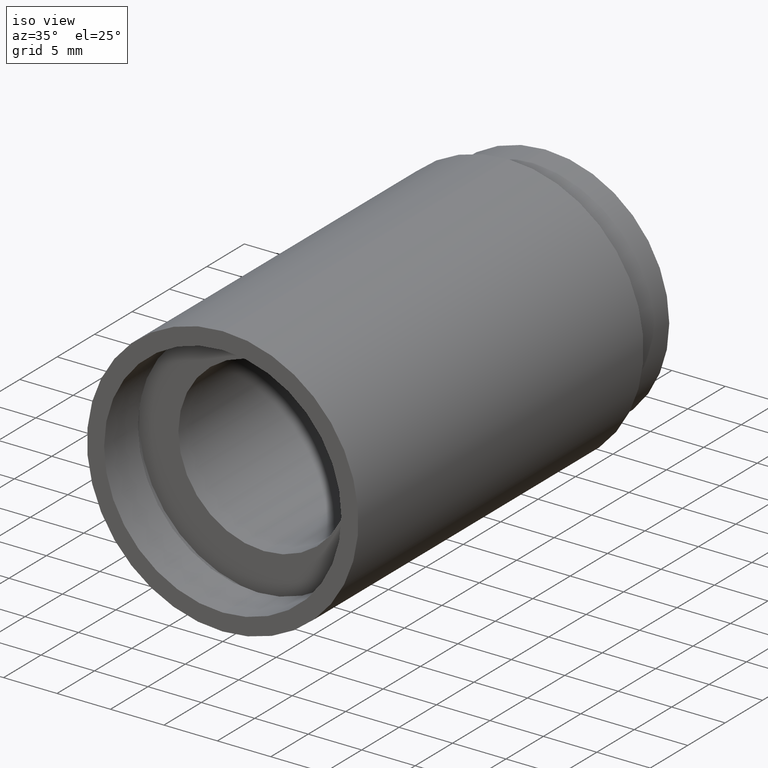
[diagram: clean part render]
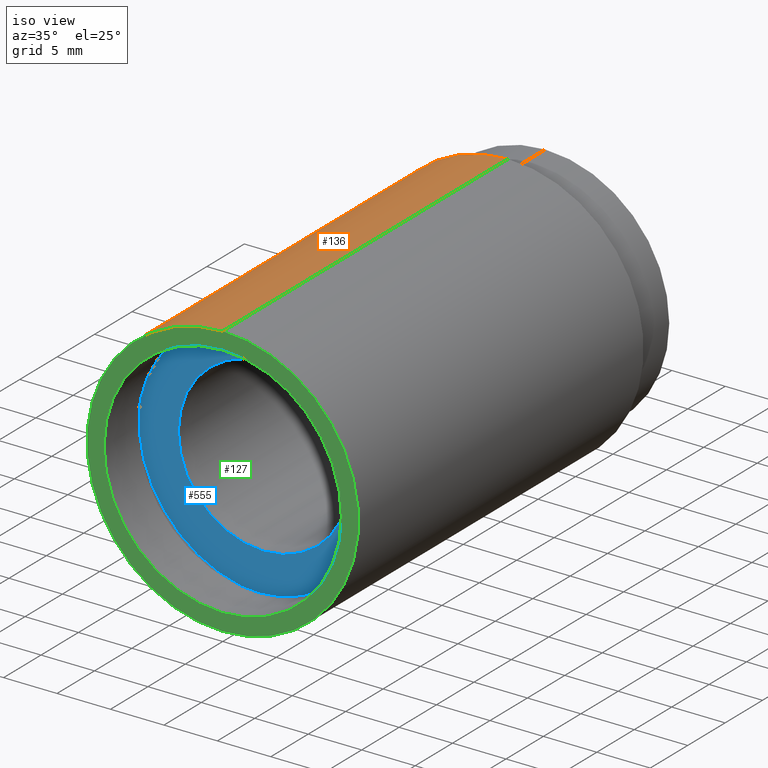
[diagram: same view with three faces highlighted in distinct colors, each labeled with its STEP entity id]
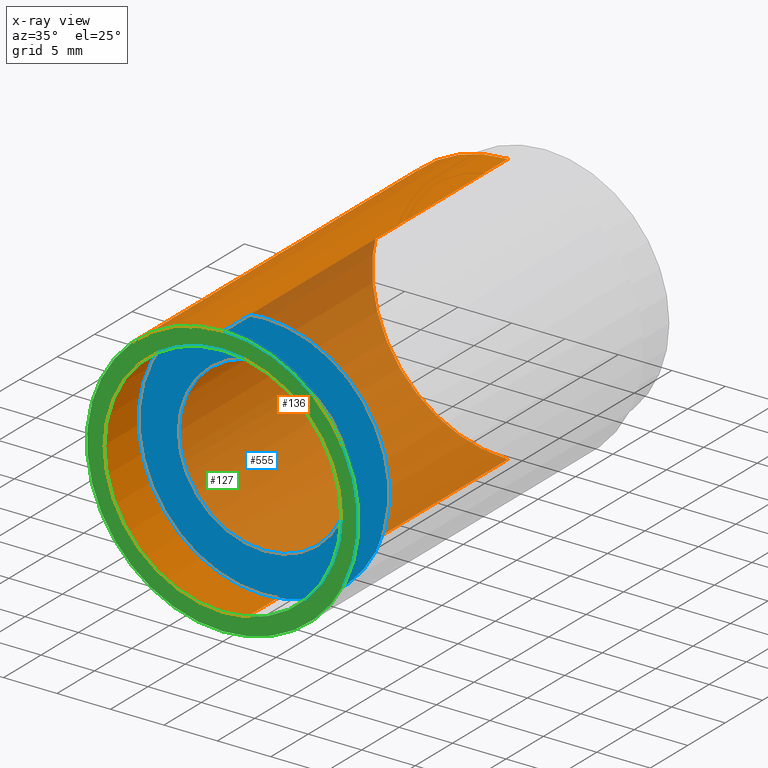
[diagram: x-ray of the same camera — body ghosted, the three highlighted faces saturated]
A machine part, iso view with three faces highlighted in distinct colors.
The next image is the same camera in x-ray (body ghosted, the three faces saturated) — at least one of them is partly hidden behind the body in this view.
Their STEP definitions:

[orange] entity #136 — the highlighted cylindrical surface (partial cylindrical patch) has radius 12.7 mm, axis along (-0, 1, -0).
#49 = CARTESIAN_POINT ( 'NONE',  ( 0.0000000000000000000, 161.3761669434274500, 12.70000000000002800 ) ) ;
#73 = AXIS2_PLACEMENT_3D ( 'NONE', #581, #222, #162 ) ;
#77 = VERTEX_POINT ( 'NONE', #94 ) ;
#83 = VERTEX_POINT ( 'NONE', #524 ) ;
#90 = ORIENTED_EDGE ( 'NONE', *, *, #505, .F. ) ;
#94 = CARTESIAN_POINT ( 'NONE',  ( 0.0000000000000000000, -2.775557561562891400E-014, 12.70000000000001900 ) ) ;
#118 = VERTEX_POINT ( 'NONE', #296 ) ;
#130 = VERTEX_POINT ( 'NONE', #610 ) ;
#136 = ADVANCED_FACE ( 'NONE', ( #419 ), #506, .T. ) ;
#151 = DIRECTION ( 'NONE',  ( 0.0000000000000000000, 0.0000000000000000000, 1.000000000000000000 ) ) ;
#152 = ORIENTED_EDGE ( 'NONE', *, *, #201, .T. ) ;
#153 = AXIS2_PLACEMENT_3D ( 'NONE', #578, #250, #151 ) ;
#156 = VECTOR ( 'NONE', #441, 1000.000000000000000 ) ;
#157 = ORIENTED_EDGE ( 'NONE', *, *, #309, .F. ) ;
#162 = DIRECTION ( 'NONE',  ( 0.0000000000000000000, 0.0000000000000000000, 1.000000000000000000 ) ) ;
#186 = LINE ( 'NONE', #591, #458 ) ;
#197 = DIRECTION ( 'NONE',  ( -0.0000000000000000000, 1.000000000000000000, -0.0000000000000000000 ) ) ;
#201 = EDGE_CURVE ( 'NONE', #77, #130, #452, .T. ) ;
#222 = DIRECTION ( 'NONE',  ( -0.0000000000000000000, 1.000000000000000000, -0.0000000000000000000 ) ) ;
#250 = DIRECTION ( 'NONE',  ( -0.0000000000000000000, 1.000000000000000000, -0.0000000000000000000 ) ) ;
#272 = CIRCLE ( 'NONE', #73, 12.70000000000003700 ) ;
#296 = CARTESIAN_POINT ( 'NONE',  ( 1.555301434917141200E-015, -2.775557561562891400E-014, -12.70000000000001900 ) ) ;
#309 = EDGE_CURVE ( 'NONE', #83, #130, #272, .T. ) ;
#329 = DIRECTION ( 'NONE',  ( -0.0000000000000000000, 1.000000000000000000, -0.0000000000000000000 ) ) ;
#419 = FACE_OUTER_BOUND ( 'NONE', #597, .T. ) ;
#432 = DIRECTION ( 'NONE',  ( 0.0000000000000000000, 0.0000000000000000000, 1.000000000000000000 ) ) ;
#441 = DIRECTION ( 'NONE',  ( -0.0000000000000000000, 1.000000000000000000, -0.0000000000000000000 ) ) ;
#452 = LINE ( 'NONE', #49, #156 ) ;
#458 = VECTOR ( 'NONE', #329, 1000.000000000000000 ) ;
#505 = EDGE_CURVE ( 'NONE', #118, #83, #186, .T. ) ;
#506 = CYLINDRICAL_SURFACE ( 'NONE', #153, 12.70000000000002800 ) ;
#523 = CARTESIAN_POINT ( 'NONE',  ( 0.0000000000000000000, -2.775557561562891400E-014, 0.0000000000000000000 ) ) ;
#524 = CARTESIAN_POINT ( 'NONE',  ( 1.555301434917143000E-015, 38.09999999999999400, -12.70000000000003700 ) ) ;
#546 = ORIENTED_EDGE ( 'NONE', *, *, #593, .T. ) ;
#571 = CIRCLE ( 'NONE', #612, 12.70000000000001900 ) ;
#578 = CARTESIAN_POINT ( 'NONE',  ( 0.0000000000000000000, 161.3761669434274500, 0.0000000000000000000 ) ) ;
#581 = CARTESIAN_POINT ( 'NONE',  ( 0.0000000000000000000, 38.09999999999999400, 0.0000000000000000000 ) ) ;
#591 = CARTESIAN_POINT ( 'NONE',  ( 1.555301434917142000E-015, 161.3761669434274500, -12.70000000000002800 ) ) ;
#593 = EDGE_CURVE ( 'NONE', #118, #77, #571, .T. ) ;
#597 = EDGE_LOOP ( 'NONE', ( #90, #546, #152, #157 ) ) ;
#610 = CARTESIAN_POINT ( 'NONE',  ( 0.0000000000000000000, 38.09999999999999400, 12.70000000000003700 ) ) ;
#612 = AXIS2_PLACEMENT_3D ( 'NONE', #523, #197, #432 ) ;

[blue] entity #555 — the highlighted planar face has unit normal (-0, 1, 0).
#12 = ORIENTED_EDGE ( 'NONE', *, *, #388, .F. ) ;
#17 = CARTESIAN_POINT ( 'NONE',  ( 1.432836755002405500E-015, 5.499999999999976900, -11.70000000000001700 ) ) ;
#22 = EDGE_LOOP ( 'NONE', ( #486, #140 ) ) ;
#25 = DIRECTION ( 'NONE',  ( -0.0000000000000000000, 1.000000000000000000, 0.0000000000000000000 ) ) ;
#43 = VERTEX_POINT ( 'NONE', #601 ) ;
#51 = VERTEX_POINT ( 'NONE', #606 ) ;
#54 = CIRCLE ( 'NONE', #429, 11.70000000000001700 ) ;
#122 = CARTESIAN_POINT ( 'NONE',  ( 0.0000000000000000000, 5.499999999999976900, 0.0000000000000000000 ) ) ;
#131 = CARTESIAN_POINT ( 'NONE',  ( 11.70000000000001700, 5.499999999999984000, 0.0000000000000000000 ) ) ;
#140 = ORIENTED_EDGE ( 'NONE', *, *, #418, .T. ) ;
#170 = CIRCLE ( 'NONE', #529, 8.000000000000019500 ) ;
#174 = AXIS2_PLACEMENT_3D ( 'NONE', #122, #548, #363 ) ;
#189 = DIRECTION ( 'NONE',  ( 0.0000000000000000000, 0.0000000000000000000, 1.000000000000000000 ) ) ;
#193 = CIRCLE ( 'NONE', #174, 11.70000000000001700 ) ;
#233 = DIRECTION ( 'NONE',  ( -0.0000000000000000000, 1.000000000000000000, -0.0000000000000000000 ) ) ;
#277 = DIRECTION ( 'NONE',  ( 0.0000000000000000000, 0.0000000000000000000, 1.000000000000000000 ) ) ;
#283 = EDGE_LOOP ( 'NONE', ( #12, #428 ) ) ;
#299 = VERTEX_POINT ( 'NONE', #360 ) ;
#327 = DIRECTION ( 'NONE',  ( 0.0000000000000000000, 0.0000000000000000000, 1.000000000000000000 ) ) ;
#328 = DIRECTION ( 'NONE',  ( -0.0000000000000000000, 1.000000000000000000, -0.0000000000000000000 ) ) ;
#342 = FACE_OUTER_BOUND ( 'NONE', #283, .T. ) ;
#349 = FACE_BOUND ( 'NONE', #22, .T. ) ;
#360 = CARTESIAN_POINT ( 'NONE',  ( 9.797174393178849300E-016, 5.499999999999976900, -8.000000000000019500 ) ) ;
#363 = DIRECTION ( 'NONE',  ( 0.0000000000000000000, 0.0000000000000000000, 1.000000000000000000 ) ) ;
#366 = CARTESIAN_POINT ( 'NONE',  ( 0.0000000000000000000, 5.499999999999976900, 0.0000000000000000000 ) ) ;
#388 = EDGE_CURVE ( 'NONE', #43, #481, #193, .T. ) ;
#418 = EDGE_CURVE ( 'NONE', #299, #51, #170, .T. ) ;
#421 = CARTESIAN_POINT ( 'NONE',  ( 0.0000000000000000000, 5.499999999999976900, 0.0000000000000000000 ) ) ;
#428 = ORIENTED_EDGE ( 'NONE', *, *, #525, .F. ) ;
#429 = AXIS2_PLACEMENT_3D ( 'NONE', #459, #328, #511 ) ;
#453 = AXIS2_PLACEMENT_3D ( 'NONE', #131, #25, #327 ) ;
#459 = CARTESIAN_POINT ( 'NONE',  ( 0.0000000000000000000, 5.499999999999976900, 0.0000000000000000000 ) ) ;
#481 = VERTEX_POINT ( 'NONE', #17 ) ;
#486 = ORIENTED_EDGE ( 'NONE', *, *, #588, .T. ) ;
#511 = DIRECTION ( 'NONE',  ( 0.0000000000000000000, 0.0000000000000000000, 1.000000000000000000 ) ) ;
#525 = EDGE_CURVE ( 'NONE', #481, #43, #54, .T. ) ;
#529 = AXIS2_PLACEMENT_3D ( 'NONE', #366, #550, #277 ) ;
#542 = CIRCLE ( 'NONE', #602, 8.000000000000019500 ) ;
#548 = DIRECTION ( 'NONE',  ( -0.0000000000000000000, 1.000000000000000000, -0.0000000000000000000 ) ) ;
#550 = DIRECTION ( 'NONE',  ( -0.0000000000000000000, 1.000000000000000000, -0.0000000000000000000 ) ) ;
#555 = ADVANCED_FACE ( 'NONE', ( #342, #349 ), #596, .F. ) ;
#588 = EDGE_CURVE ( 'NONE', #51, #299, #542, .T. ) ;
#596 = PLANE ( 'NONE',  #453 ) ;
#601 = CARTESIAN_POINT ( 'NONE',  ( 0.0000000000000000000, 5.499999999999976900, 11.70000000000001700 ) ) ;
#602 = AXIS2_PLACEMENT_3D ( 'NONE', #421, #233, #189 ) ;
#606 = CARTESIAN_POINT ( 'NONE',  ( 0.0000000000000000000, 5.499999999999976900, 8.000000000000019500 ) ) ;

[green] entity #127 — the highlighted planar face has unit normal (-0, 1, 0).
#6 = DIRECTION ( 'NONE',  ( 0.0000000000000000000, 0.0000000000000000000, 1.000000000000000000 ) ) ;
#11 = ORIENTED_EDGE ( 'NONE', *, *, #369, .F. ) ;
#29 = FACE_OUTER_BOUND ( 'NONE', #368, .T. ) ;
#42 = FACE_BOUND ( 'NONE', #106, .T. ) ;
#46 = CARTESIAN_POINT ( 'NONE',  ( 11.10000000000002300, -1.590039098016662300E-014, 0.0000000000000000000 ) ) ;
#61 = EDGE_CURVE ( 'NONE', #84, #149, #491, .T. ) ;
#67 = DIRECTION ( 'NONE',  ( 0.0000000000000000000, 0.0000000000000000000, 1.000000000000000000 ) ) ;
#77 = VERTEX_POINT ( 'NONE', #94 ) ;
#84 = VERTEX_POINT ( 'NONE', #301 ) ;
#94 = CARTESIAN_POINT ( 'NONE',  ( 0.0000000000000000000, -2.775557561562891400E-014, 12.70000000000001900 ) ) ;
#106 = EDGE_LOOP ( 'NONE', ( #346, #510 ) ) ;
#118 = VERTEX_POINT ( 'NONE', #296 ) ;
#127 = ADVANCED_FACE ( 'NONE', ( #29, #42 ), #143, .F. ) ;
#143 = PLANE ( 'NONE',  #177 ) ;
#147 = CARTESIAN_POINT ( 'NONE',  ( 0.0000000000000000000, -2.775557561562891400E-014, 0.0000000000000000000 ) ) ;
#149 = VERTEX_POINT ( 'NONE', #575 ) ;
#171 = AXIS2_PLACEMENT_3D ( 'NONE', #176, #179, #67 ) ;
#176 = CARTESIAN_POINT ( 'NONE',  ( 0.0000000000000000000, -2.775557561562891400E-014, 0.0000000000000000000 ) ) ;
#177 = AXIS2_PLACEMENT_3D ( 'NONE', #46, #399, #573 ) ;
#179 = DIRECTION ( 'NONE',  ( -0.0000000000000000000, 1.000000000000000000, -0.0000000000000000000 ) ) ;
#191 = DIRECTION ( 'NONE',  ( -0.0000000000000000000, 1.000000000000000000, -0.0000000000000000000 ) ) ;
#197 = DIRECTION ( 'NONE',  ( -0.0000000000000000000, 1.000000000000000000, -0.0000000000000000000 ) ) ;
#219 = AXIS2_PLACEMENT_3D ( 'NONE', #585, #316, #6 ) ;
#245 = ORIENTED_EDGE ( 'NONE', *, *, #593, .F. ) ;
#260 = AXIS2_PLACEMENT_3D ( 'NONE', #147, #191, #293 ) ;
#293 = DIRECTION ( 'NONE',  ( 0.0000000000000000000, 0.0000000000000000000, 1.000000000000000000 ) ) ;
#296 = CARTESIAN_POINT ( 'NONE',  ( 1.555301434917141200E-015, -2.775557561562891400E-014, -12.70000000000001900 ) ) ;
#301 = CARTESIAN_POINT ( 'NONE',  ( 0.0000000000000000000, -2.775557561562891400E-014, 11.10000000000002300 ) ) ;
#316 = DIRECTION ( 'NONE',  ( -0.0000000000000000000, 1.000000000000000000, -0.0000000000000000000 ) ) ;
#346 = ORIENTED_EDGE ( 'NONE', *, *, #61, .T. ) ;
#368 = EDGE_LOOP ( 'NONE', ( #11, #245 ) ) ;
#369 = EDGE_CURVE ( 'NONE', #77, #118, #478, .T. ) ;
#370 = CIRCLE ( 'NONE', #171, 11.10000000000002300 ) ;
#399 = DIRECTION ( 'NONE',  ( -0.0000000000000000000, 1.000000000000000000, 0.0000000000000000000 ) ) ;
#414 = EDGE_CURVE ( 'NONE', #149, #84, #370, .T. ) ;
#432 = DIRECTION ( 'NONE',  ( 0.0000000000000000000, 0.0000000000000000000, 1.000000000000000000 ) ) ;
#478 = CIRCLE ( 'NONE', #219, 12.70000000000001900 ) ;
#491 = CIRCLE ( 'NONE', #260, 11.10000000000002300 ) ;
#510 = ORIENTED_EDGE ( 'NONE', *, *, #414, .T. ) ;
#523 = CARTESIAN_POINT ( 'NONE',  ( 0.0000000000000000000, -2.775557561562891400E-014, 0.0000000000000000000 ) ) ;
#571 = CIRCLE ( 'NONE', #612, 12.70000000000001900 ) ;
#573 = DIRECTION ( 'NONE',  ( 0.0000000000000000000, 0.0000000000000000000, 1.000000000000000000 ) ) ;
#575 = CARTESIAN_POINT ( 'NONE',  ( 1.359357947053564900E-015, -2.775557561562891400E-014, -11.10000000000002300 ) ) ;
#585 = CARTESIAN_POINT ( 'NONE',  ( 0.0000000000000000000, -2.775557561562891400E-014, 0.0000000000000000000 ) ) ;
#593 = EDGE_CURVE ( 'NONE', #118, #77, #571, .T. ) ;
#612 = AXIS2_PLACEMENT_3D ( 'NONE', #523, #197, #432 ) ;